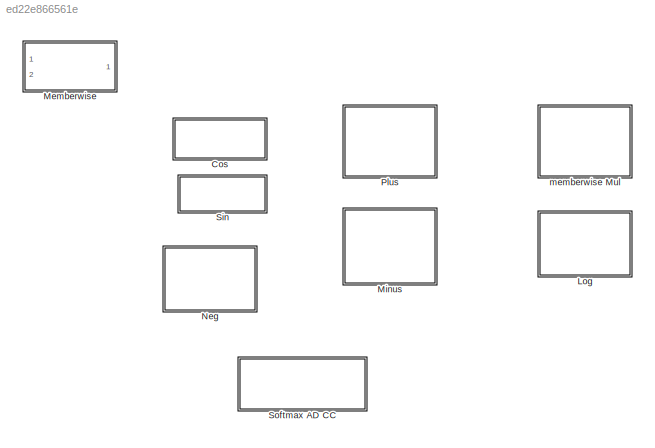
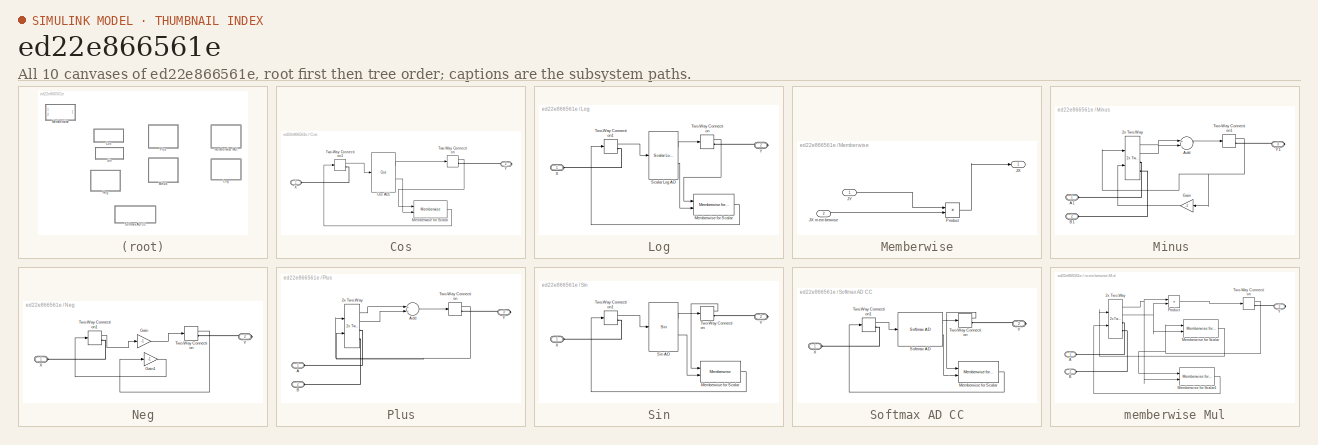
[diagram: thumbnail index - all 10 canvases of the model, root first then tree order]
MODEL slx_ed22e866561e
KIND library
CONFIG AbsTol = auto
CONFIG EnableMultiTasking = off
CONFIG FixedStep = auto
CONFIG MaxStep = auto
CONFIG MinStep = auto
CONFIG RelTol = 1e-3
CONFIG SampleTimeConstraint = Unconstrained
CONFIG Solver = VariableStepAuto
CONFIG SolverName = VariableStepAuto
CONFIG StartTime = 0.0
CONFIG StopTime = 10.0
BLOCK [SubSystem] Cos
  Ports = [0, 0, 0, 0, 0, 1, 1]
  RequestExecContextInheritance = off
  Variant = off
BLOCK [Reference] Cos/Cos AD1  REF=ad_mem_base/Cos  (lib defined in slx_641c86b2e6c4)
  Ports = [1, 2]
  SourceBlock = ad_mem_base/Cos
  SourceProductName = AutoDiff
BLOCK [Reference] Cos/Memberwise for Scalar  REF=ad_mem_scalar/Memberwise  (lib defined in slx_ed22e866561e)
  Ports = [2, 1]
  SourceBlock = ad_mem_scalar/Memberwise
  SourceType = SubSystem
BLOCK [TwoWayConnection] Cos/Two-Way Connection
  Ports = [1, 1, 0, 0, 0, 0, 1]
BLOCK [TwoWayConnection] Cos/Two-Way Connection1
  Ports = [1, 1, 0, 0, 0, 0, 1]
BLOCK [PMIOPort] Cos/X
  Port = 1
  Side = Left
BLOCK [PMIOPort] Cos/Y
  Port = 2
  Side = Right
BLOCK [SubSystem] Log
  Ports = [0, 0, 0, 0, 0, 1, 1]
  RequestExecContextInheritance = off
  Variant = off
BLOCK [Reference] Log/Memberwise for Scalar  REF=autodiff/Common/Memberwise for Scalar  (lib defined in slx_73a817ef6e8b)
  Ports = [2, 1]
  SourceBlock = autodiff/Common/Memberwise for Scalar
  SourceProductName = AutoDiff
  SourceType = SubSystem
BLOCK [Reference] Log/Scalar Log AD  REF=autodiff/Memberwise Base/Scalar Log AD  (lib defined in slx_73a817ef6e8b)
  Ports = [1, 2]
  SourceBlock = autodiff/Memberwise Base/Scalar Log AD
  SourceProductName = AutoDiff
  SourceType = SubSystem
BLOCK [TwoWayConnection] Log/Two-Way Connection
  Ports = [1, 1, 0, 0, 0, 0, 1]
BLOCK [TwoWayConnection] Log/Two-Way Connection1
  Ports = [1, 1, 0, 0, 0, 0, 1]
BLOCK [PMIOPort] Log/X
  Port = 1
  Side = Left
BLOCK [PMIOPort] Log/Y
  Port = 2
  Side = Right
BLOCK [SubSystem] Memberwise
  Ports = [2, 1]
  RequestExecContextInheritance = off
  Variant = off
BLOCK [Outport] Memberwise/JX
  IconDisplay = Port number
BLOCK [Inport] Memberwise/JX memberwise
  IconDisplay = Port number
  Port = 2
BLOCK [Inport] Memberwise/JY
  IconDisplay = Port number
BLOCK [Product] Memberwise/Product
  InputSameDT = off
  OutDataTypeStr = Inherit: Inherit via internal rule
  Ports = [2, 1]
  RndMeth = Floor
  SaturateOnIntegerOverflow = off
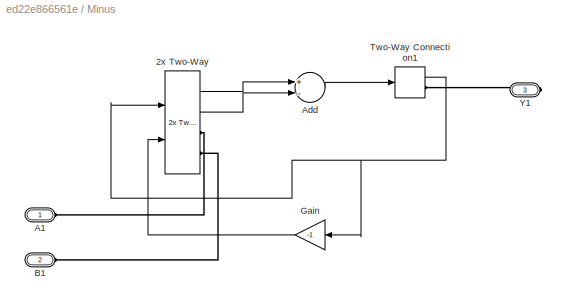
BLOCK [SubSystem] Minus 
  Ports = [0, 0, 0, 0, 0, 2, 1]
  RequestExecContextInheritance = off
  Variant = off
BLOCK [Reference] Minus /2x Two-Way   REF=autodiff/Common/2x Two-Way   (lib defined in slx_73a817ef6e8b)
  Ports = [2, 2, 0, 0, 0, 0, 2]
  SourceBlock = autodiff/Common/2x Two-Way
  SourceProductName = AutoDiff
  SourceType = SubSystem
BLOCK [PMIOPort] Minus /A1
  Port = 1
  Side = Left
BLOCK [Sum] Minus /Add
  InputSameDT = off
  Inputs = +-
  OutDataTypeStr = Inherit: Inherit via internal rule
  Ports = [2, 1]
  SaturateOnIntegerOverflow = off
BLOCK [PMIOPort] Minus /B1
  Port = 2
  Side = Left
BLOCK [Gain] Minus /Gain
  Gain = -1
  OutDataTypeStr = Inherit: Inherit via internal rule
  ParamDataTypeStr = Inherit: Inherit via internal rule
  SaturateOnIntegerOverflow = off
BLOCK [TwoWayConnection] Minus /Two-Way Connection1
  Ports = [1, 1, 0, 0, 0, 0, 1]
BLOCK [PMIOPort] Minus /Y1
  Port = 3
  Side = Right
BLOCK [SubSystem] Neg
  Ports = [0, 0, 0, 0, 0, 1, 1]
  RequestExecContextInheritance = off
  Variant = off
BLOCK [Gain] Neg/Gain
  Gain = -1
  OutDataTypeStr = Inherit: Inherit via internal rule
  ParamDataTypeStr = Inherit: Inherit via internal rule
  SaturateOnIntegerOverflow = off
BLOCK [Gain] Neg/Gain1
  Gain = -1
  OutDataTypeStr = Inherit: Inherit via internal rule
  ParamDataTypeStr = Inherit: Inherit via internal rule
  SaturateOnIntegerOverflow = off
BLOCK [TwoWayConnection] Neg/Two-Way Connection
  Ports = [1, 1, 0, 0, 0, 0, 1]
BLOCK [TwoWayConnection] Neg/Two-Way Connection1
  Ports = [1, 1, 0, 0, 0, 0, 1]
BLOCK [PMIOPort] Neg/X
  Port = 1
  Side = Left
BLOCK [PMIOPort] Neg/Y
  Port = 2
  Side = Right
BLOCK [SubSystem] Plus
  Ports = [0, 0, 0, 0, 0, 2, 1]
  RequestExecContextInheritance = off
  Variant = off
BLOCK [Reference] Plus/2x Two-Way   REF=autodiff/Common/2x Two-Way   (lib defined in slx_73a817ef6e8b)
  Ports = [2, 2, 0, 0, 0, 0, 2]
  SourceBlock = autodiff/Common/2x Two-Way
  SourceProductName = AutoDiff
  SourceType = SubSystem
BLOCK [PMIOPort] Plus/A
  Port = 1
  Side = Left
BLOCK [Sum] Plus/Add
  InputSameDT = off
  OutDataTypeStr = Inherit: Inherit via internal rule
  Ports = [2, 1]
  SaturateOnIntegerOverflow = off
BLOCK [PMIOPort] Plus/B
  Port = 2
  Side = Left
BLOCK [TwoWayConnection] Plus/Two-Way Connection
  Ports = [1, 1, 0, 0, 0, 0, 1]
BLOCK [PMIOPort] Plus/Y
  Port = 3
  Side = Right
BLOCK [SubSystem] Sin
  Ports = [0, 0, 0, 0, 0, 1, 1]
  RequestExecContextInheritance = off
  Variant = off
BLOCK [Reference] Sin/Memberwise for Scalar  REF=ad_mem_scalar/Memberwise  (lib defined in slx_ed22e866561e)
  Ports = [2, 1]
  SourceBlock = ad_mem_scalar/Memberwise
  SourceType = SubSystem
BLOCK [Reference] Sin/Sin AD  REF=ad_mem_base/Sin  (lib defined in slx_641c86b2e6c4)
  Ports = [1, 2]
  SourceBlock = ad_mem_base/Sin
  SourceProductName = AutoDiff
  SourceType = SubSystem
BLOCK [TwoWayConnection] Sin/Two-Way Connection
  Ports = [1, 1, 0, 0, 0, 0, 1]
BLOCK [TwoWayConnection] Sin/Two-Way Connection1
  Ports = [1, 1, 0, 0, 0, 0, 1]
BLOCK [PMIOPort] Sin/X
  Port = 1
  Side = Left
BLOCK [PMIOPort] Sin/Y
  Port = 2
  Side = Right
BLOCK [SubSystem] Softmax AD CC
  Ports = [0, 0, 0, 0, 0, 1, 1]
  RequestExecContextInheritance = off
  ShowPortLabels = none
  Variant = off
BLOCK [Reference] Softmax AD CC/Memberwise for Scalar  REF=autodiff/Common/Memberwise for Scalar  (lib defined in slx_73a817ef6e8b)
  Ports = [2, 1]
  SourceBlock = autodiff/Common/Memberwise for Scalar
  SourceProductName = AutoDiff
  SourceType = SubSystem
BLOCK [Reference] Softmax AD CC/Softmax AD  REF=autodiff/Memberwise Base/Softmax AD  (lib defined in slx_73a817ef6e8b)
  Ports = [1, 2]
  SourceBlock = autodiff/Memberwise Base/Softmax AD
  SourceProductName = AutoDiff
BLOCK [TwoWayConnection] Softmax AD CC/Two-Way Connection
  Ports = [1, 1, 0, 0, 0, 0, 1]
BLOCK [TwoWayConnection] Softmax AD CC/Two-Way Connection1
  Ports = [1, 1, 0, 0, 0, 0, 1]
BLOCK [PMIOPort] Softmax AD CC/X
  Port = 1
  Side = Left
BLOCK [PMIOPort] Softmax AD CC/Y
  Port = 2
  Side = Right
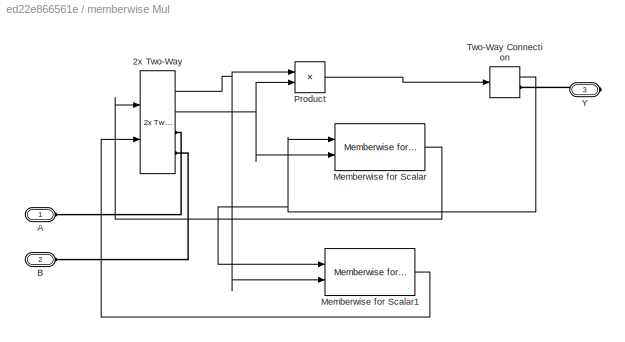
BLOCK [SubSystem] memberwise Mul
  Ports = [0, 0, 0, 0, 0, 2, 1]
  RequestExecContextInheritance = off
  Variant = off
BLOCK [Reference] memberwise Mul/2x Two-Way   REF=autodiff/Common/2x Two-Way   (lib defined in slx_73a817ef6e8b)
  Ports = [2, 2, 0, 0, 0, 0, 2]
  SourceBlock = autodiff/Common/2x Two-Way
  SourceProductName = AutoDiff
  SourceType = SubSystem
BLOCK [PMIOPort] memberwise Mul/A
  Port = 1
  Side = Left
BLOCK [PMIOPort] memberwise Mul/B
  Port = 2
  Side = Left
BLOCK [Reference] memberwise Mul/Memberwise for Scalar  REF=autodiff/Common/Memberwise for Scalar  (lib defined in slx_73a817ef6e8b)
  Ports = [2, 1]
  SourceBlock = autodiff/Common/Memberwise for Scalar
  SourceProductName = AutoDiff
  SourceType = SubSystem
BLOCK [Reference] memberwise Mul/Memberwise for Scalar1  REF=autodiff/Common/Memberwise for Scalar  (lib defined in slx_73a817ef6e8b)
  Ports = [2, 1]
  SourceBlock = autodiff/Common/Memberwise for Scalar
  SourceProductName = AutoDiff
  SourceType = SubSystem
BLOCK [Product] memberwise Mul/Product
  InputSameDT = off
  OutDataTypeStr = Inherit: Inherit via internal rule
  Ports = [2, 1]
  RndMeth = Floor
  SaturateOnIntegerOverflow = off
BLOCK [TwoWayConnection] memberwise Mul/Two-Way Connection
  Ports = [1, 1, 0, 0, 0, 0, 1]
BLOCK [PMIOPort] memberwise Mul/Y
  Port = 3
  Side = Right
LINE Cos/Cos AD1:1 -> Cos/Two-Way Connection:1
LINE Cos/Cos AD1:2 -> Cos/Memberwise for Scalar:2
LINE Cos/Memberwise for Scalar:1 -> Cos/Two-Way Connection1:1
LINE Cos/Two-Way Connection1:1 -> Cos/Cos AD1:1
LINE Cos/Two-Way Connection:1 -> Cos/Memberwise for Scalar:1
LINE Log/Memberwise for Scalar:1 -> Log/Two-Way Connection1:1
LINE Log/Scalar Log AD:1 -> Log/Two-Way Connection:1
LINE Log/Scalar Log AD:2 -> Log/Memberwise for Scalar:2
LINE Log/Two-Way Connection1:1 -> Log/Scalar Log AD:1
LINE Log/Two-Way Connection:1 -> Log/Memberwise for Scalar:1
LINE Memberwise/JX memberwise:1 -> Memberwise/Product:2
LINE Memberwise/JY:1 -> Memberwise/Product:1
LINE Memberwise/Product:1 -> Memberwise/JX:1
LINE Minus /2x Two-Way :1 -> Minus /Add:1
LINE Minus /2x Two-Way :2 -> Minus /Add:2
LINE Minus /Add:1 -> Minus /Two-Way Connection1:1
LINE Minus /Gain:1 -> Minus /2x Two-Way :2
NET Minus /Two-Way Connection1:1 -> Minus /2x Two-Way :1, Minus /Gain:1
LINE Neg/Gain1:1 -> Neg/Two-Way Connection1:1
LINE Neg/Gain:1 -> Neg/Two-Way Connection:1
LINE Neg/Two-Way Connection1:1 -> Neg/Gain:1
LINE Neg/Two-Way Connection:1 -> Neg/Gain1:1
LINE Plus/2x Two-Way :1 -> Plus/Add:1
LINE Plus/2x Two-Way :2 -> Plus/Add:2
LINE Plus/Add:1 -> Plus/Two-Way Connection:1
NET Plus/Two-Way Connection:1 -> Plus/2x Two-Way :1, Plus/2x Two-Way :2
LINE Sin/Memberwise for Scalar:1 -> Sin/Two-Way Connection1:1
LINE Sin/Sin AD:1 -> Sin/Two-Way Connection:1
LINE Sin/Sin AD:2 -> Sin/Memberwise for Scalar:2
LINE Sin/Two-Way Connection1:1 -> Sin/Sin AD:1
LINE Sin/Two-Way Connection:1 -> Sin/Memberwise for Scalar:1
LINE Softmax AD CC/Memberwise for Scalar:1 -> Softmax AD CC/Two-Way Connection1:1
LINE Softmax AD CC/Softmax AD:1 -> Softmax AD CC/Two-Way Connection:1
LINE Softmax AD CC/Softmax AD:2 -> Softmax AD CC/Memberwise for Scalar:2
LINE Softmax AD CC/Two-Way Connection1:1 -> Softmax AD CC/Softmax AD:1
LINE Softmax AD CC/Two-Way Connection:1 -> Softmax AD CC/Memberwise for Scalar:1
NET memberwise Mul/2x Two-Way :1 -> memberwise Mul/Memberwise for Scalar1:2, memberwise Mul/Product:1
NET memberwise Mul/2x Two-Way :2 -> memberwise Mul/Memberwise for Scalar:2, memberwise Mul/Product:2
LINE memberwise Mul/Memberwise for Scalar1:1 -> memberwise Mul/2x Two-Way :2
LINE memberwise Mul/Memberwise for Scalar:1 -> memberwise Mul/2x Two-Way :1
LINE memberwise Mul/Product:1 -> memberwise Mul/Two-Way Connection:1
NET memberwise Mul/Two-Way Connection:1 -> memberwise Mul/Memberwise for Scalar1:1, memberwise Mul/Memberwise for Scalar:1
PLINE Cos/Two-Way Connection1:RConn1 -- Cos/X:RConn1
PLINE Cos/Two-Way Connection:RConn1 -- Cos/Y:RConn1
PLINE Log/Two-Way Connection1:RConn1 -- Log/X:RConn1
PLINE Log/Two-Way Connection:RConn1 -- Log/Y:RConn1
PLINE Minus /2x Two-Way :RConn1 -- Minus /A1:RConn1
PLINE Minus /2x Two-Way :RConn2 -- Minus /B1:RConn1
PLINE Minus /Two-Way Connection1:RConn1 -- Minus /Y1:RConn1
PLINE Neg/Two-Way Connection1:RConn1 -- Neg/X:RConn1
PLINE Neg/Two-Way Connection:RConn1 -- Neg/Y:RConn1
PLINE Plus/2x Two-Way :RConn1 -- Plus/A:RConn1
PLINE Plus/2x Two-Way :RConn2 -- Plus/B:RConn1
PLINE Plus/Two-Way Connection:RConn1 -- Plus/Y:RConn1
PLINE Sin/Two-Way Connection1:RConn1 -- Sin/X:RConn1
PLINE Sin/Two-Way Connection:RConn1 -- Sin/Y:RConn1
PLINE Softmax AD CC/Two-Way Connection1:RConn1 -- Softmax AD CC/X:RConn1
PLINE Softmax AD CC/Two-Way Connection:RConn1 -- Softmax AD CC/Y:RConn1
PLINE memberwise Mul/2x Two-Way :RConn1 -- memberwise Mul/A:RConn1
PLINE memberwise Mul/2x Two-Way :RConn2 -- memberwise Mul/B:RConn1
PLINE memberwise Mul/Two-Way Connection:RConn1 -- memberwise Mul/Y:RConn1
note: NET lines group one-source signal fan-out (src -> all destinations, sorted); 1:1 wires keep LINE
